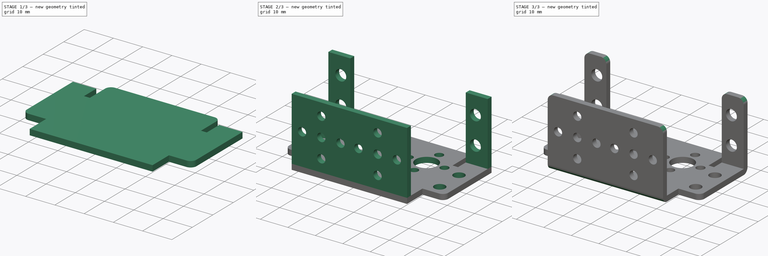
[diagram: build sequence overview — one tinted view per stage of 3, left to right]
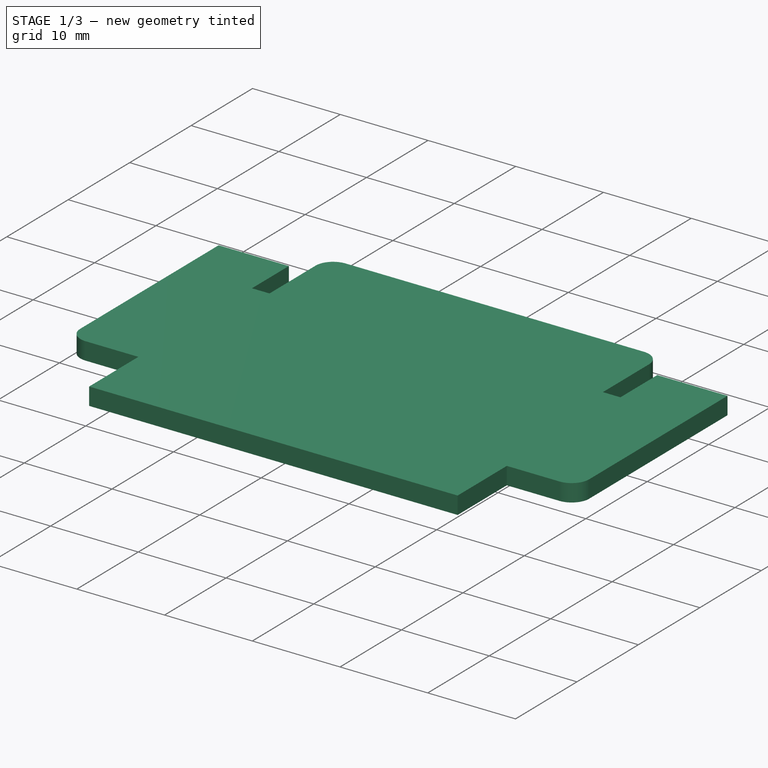
[diagram: stage 1 of 3 — iso view after this stage's code; geometry added in this stage tinted green]
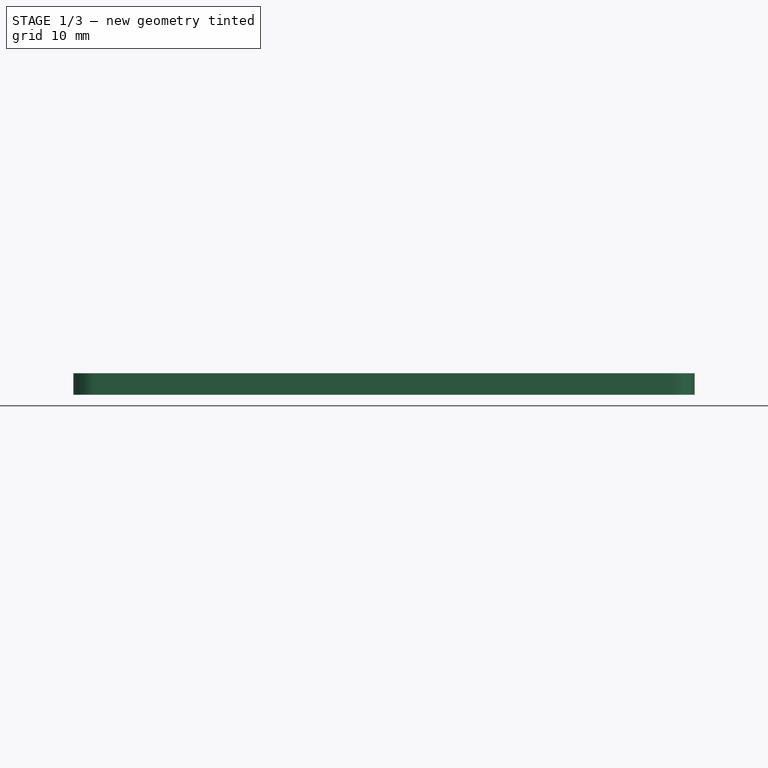
[diagram: stage 1 of 3 — front view after this stage's code; geometry added in this stage tinted green]
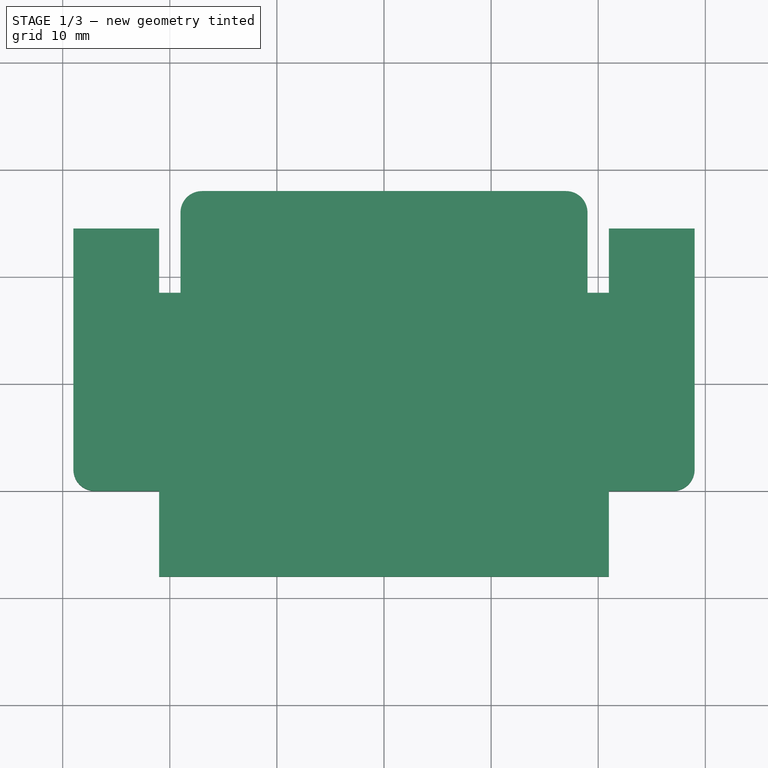
[diagram: stage 1 of 3 — top view after this stage's code; geometry added in this stage tinted green]
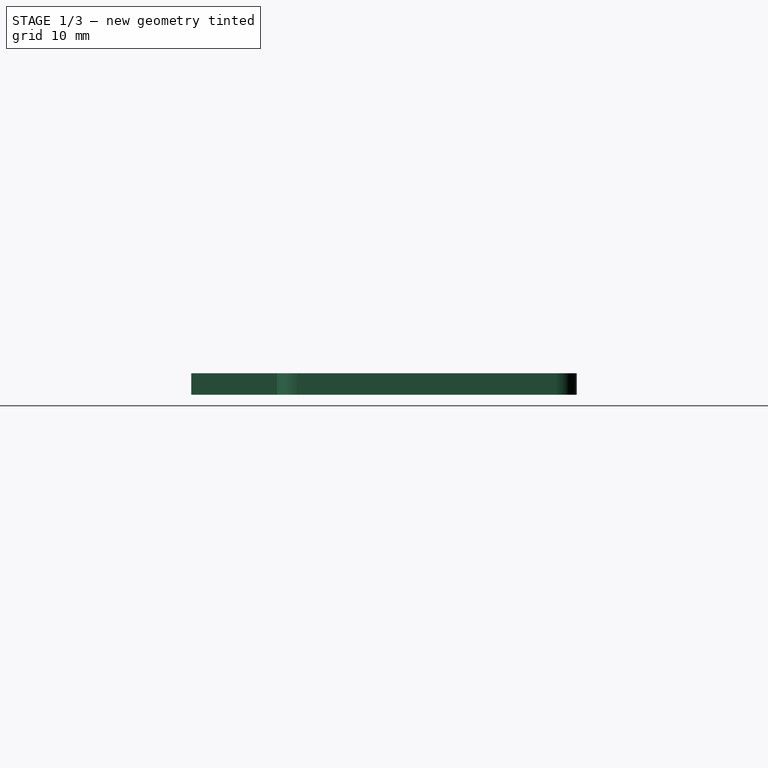
[diagram: stage 1 of 3 — right view after this stage's code; geometry added in this stage tinted green]
FCSTD DOCUMENT  (FreeCAD 0.19R24276 (Git))
Label: parte_servos
License: All rights reserved
LicenseURL: http://en.wikipedia.org/wiki/All_rights_reserved
objects: Sketcher::SketchObject×4, PartDesign::Pad×2, PartDesign::Pocket×2, PartDesign::Fillet×2, PartDesign::Mirrored×1, PartDesign::Body×1
note: 18 computed .brp shape members not serialized (recipe doc carries the construction recipe); baked Part::Feature solids carry a one-line shape summary decoded from their .brp

FEATURE [Sketcher::SketchObject] Sketch
  FullyConstrained = true
  MapMode = 5
  Support = -> [XY_Plane]
  sketch-geometry (14):
    g0: LineSegment StartX=0 StartY=-18 StartZ=0 EndX=21 EndY=-18 EndZ=0
    g1: LineSegment StartX=21 StartY=-18 StartZ=0 EndX=21 EndY=-10 EndZ=0
    g2: LineSegment StartX=21 StartY=-10 StartZ=0 EndX=27 EndY=-10 EndZ=0
    g3: ArcOfCircle CenterX=27 CenterY=-8 CenterZ=0 NormalX=0 NormalY=0 NormalZ=1 AngleXU=0 Radius=2 StartAngle=4.71239 EndAngle=6.28319
    g4: LineSegment StartX=29 StartY=-8 StartZ=0 EndX=29 EndY=14.5 EndZ=0
    g5: LineSegment StartX=29 StartY=14.5 StartZ=0 EndX=21 EndY=14.5 EndZ=0
    g6: LineSegment StartX=21 StartY=14.5 StartZ=0 EndX=21 EndY=8.5 EndZ=0
    g7: LineSegment StartX=21 StartY=8.5 StartZ=0 EndX=19 EndY=8.5 EndZ=0
    g8: LineSegment StartX=19 StartY=8.5 StartZ=0 EndX=19 EndY=16 EndZ=0
    g9: ArcOfCircle CenterX=17 CenterY=16 CenterZ=0 NormalX=0 NormalY=0 NormalZ=1 AngleXU=0 Radius=2 StartAngle=0 EndAngle=1.5708
    g10: LineSegment StartX=17 StartY=18 StartZ=0 EndX=0 EndY=18 EndZ=0
    g11: LineSegment StartX=0 StartY=18 StartZ=0 EndX=0 EndY=-18 EndZ=0
    g12: LineSegment StartX=6 StartY=18 StartZ=0 EndX=6 EndY=0 EndZ=0
    g13: LineSegment StartX=6 StartY=-18 StartZ=0 EndX=6 EndY=0 EndZ=0
  constraints (41):
    c: PointOnObject(g0,g-2)
    c: Coincident(g0,g1)
    c: Vertical(g1)
    c: Coincident(g1,g2)
    c: Horizontal(g2)
    c: Tangent(g2,g3) = -1.5708
    c: Tangent(g3,g4) = -1.5708
    c: Coincident(g4,g5)
    c: Horizontal(g5)
    c: Coincident(g5,g6)
    c: Coincident(g6,g7)
    c: Horizontal(g7)
    c: Coincident(g7,g8)
    c: Vertical(g8)
    c: Tangent(g8,g9) = -1.5708
    c: Tangent(g9,g10) = -1.5708
    c: Coincident(g10,g11)
    c: Coincident(g11,g0)
    c: Vertical(g11)
    c: Horizontal(g0)
    c: Horizontal(g10)
    c: DistanceY(g1,g1) = 8
    c: DistanceX(g1,g3) = 8
    c: Vertical(g4)
    c: Vertical(g6)
    c: DistanceX(g7,g7) = 2
    c: Radius(g3) = 2
    c: Equal(g3,g9)
    c: DistanceX(g5,g5) = 8
    c: DistanceX(g0,g3) = 29
    c: DistanceY(g0,g10) = 36
    c: DistanceY(g7,g9) = 9.5
    c: DistanceY(g2,g4) = 24.5
    c: PointOnObject(g12,g10)
    c: Vertical(g12)
    c: PointOnObject(g13,g0)
    c: Coincident(g13,g12)
    c: Vertical(g13)
    c: Equal(g13,g12)
    c: PointOnObject(g12,g-1)
    c: DistanceX(g10,g12) = 6
FEATURE [PartDesign::Pad] Pad
  Direction = (1,1,1)
  Length = 2
  Length2 = 100
  Profile = -> Sketch
  Type = 0
FEATURE [PartDesign::Mirrored] Mirrored
  BaseFeature = -> Pad
  MirrorPlane = -> Sketch [V_Axis]
  Originals = -> [Pad]
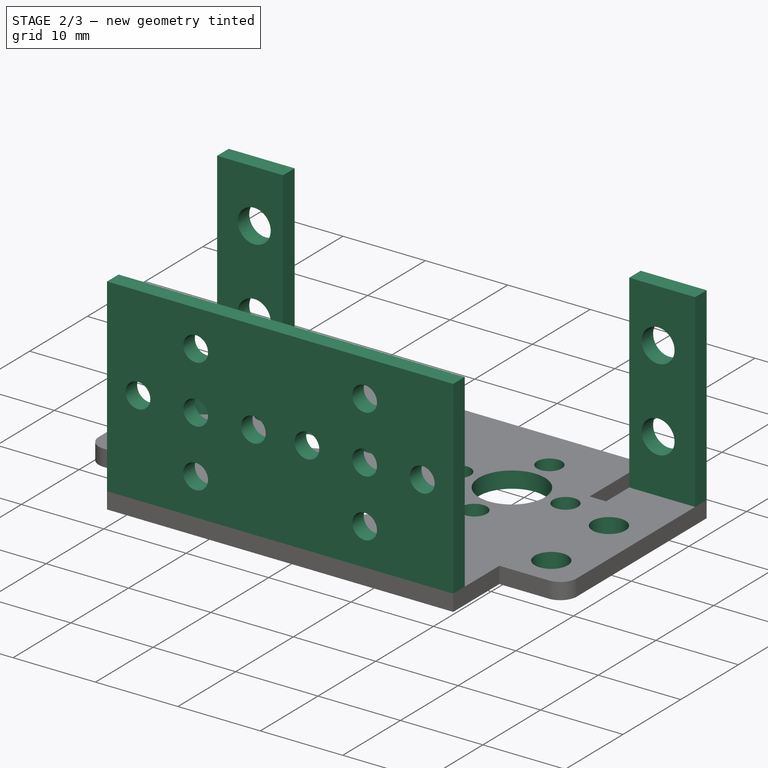
[diagram: stage 2 of 3 — iso view after this stage's code; geometry added in this stage tinted green]
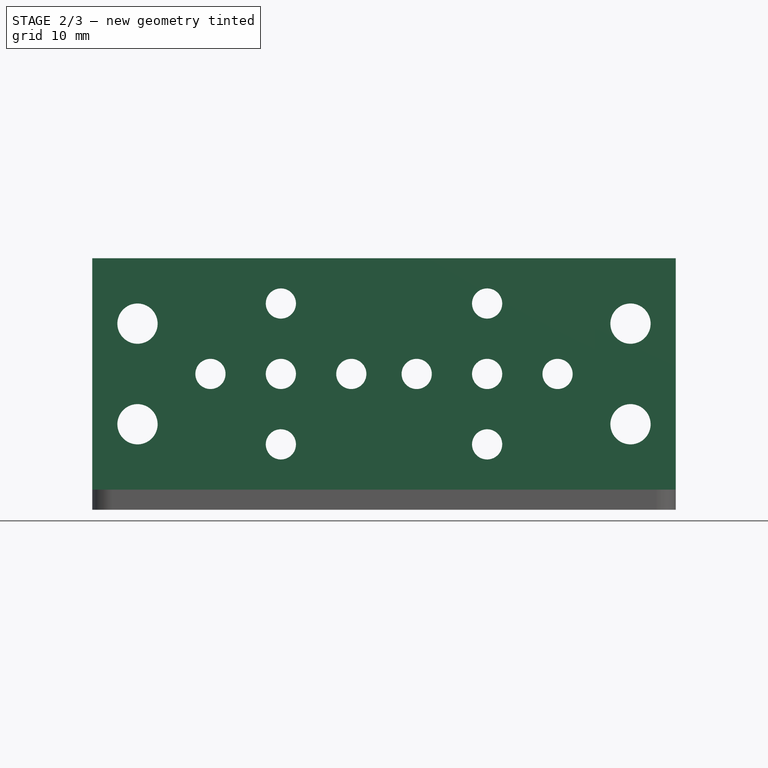
[diagram: stage 2 of 3 — front view after this stage's code; geometry added in this stage tinted green]
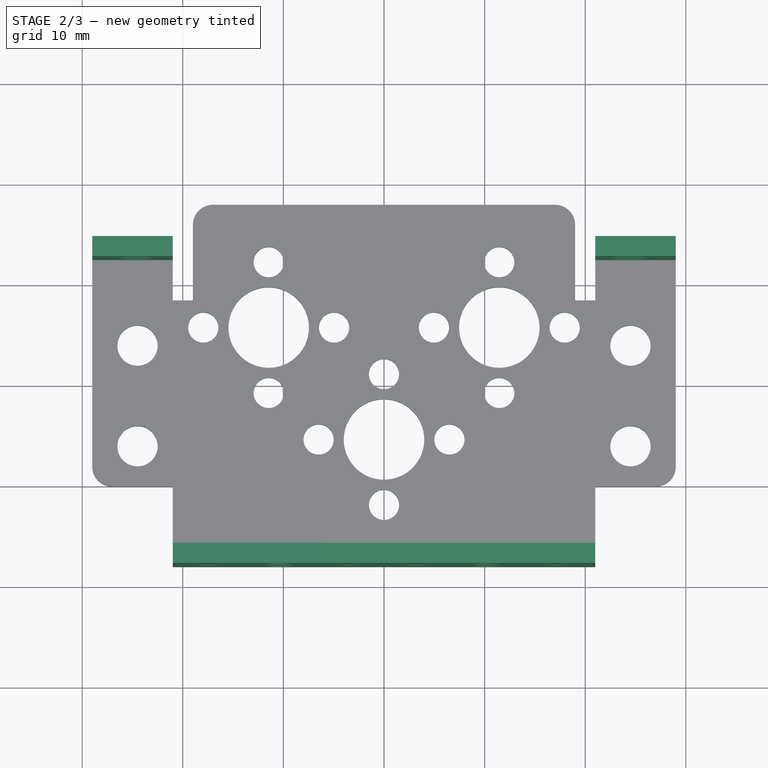
[diagram: stage 2 of 3 — top view after this stage's code; geometry added in this stage tinted green]
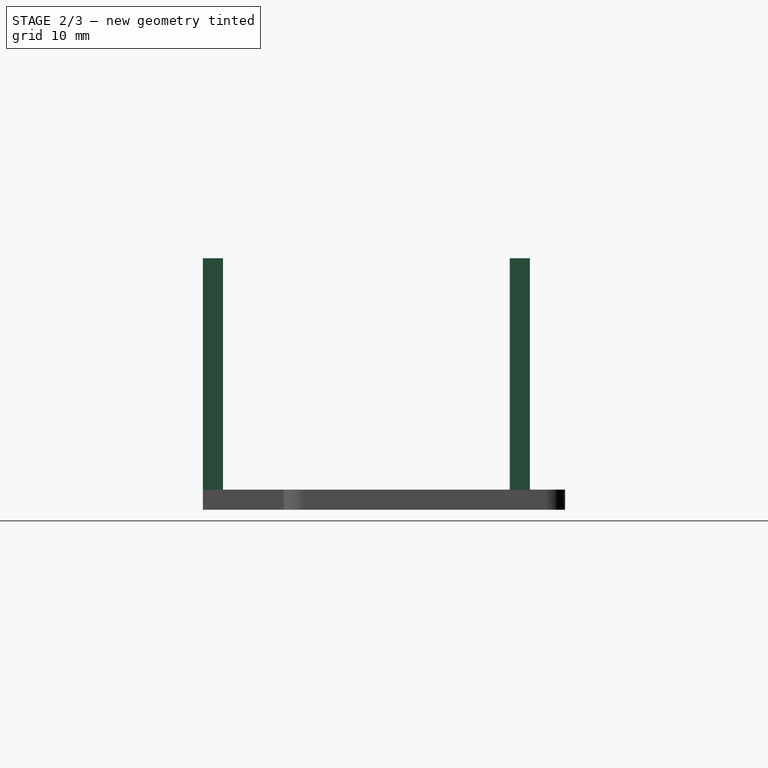
[diagram: stage 2 of 3 — right view after this stage's code; geometry added in this stage tinted green]
FEATURE [Sketcher::SketchObject] Sketch001
  ExternalGeometry = -> [Mirrored]
  FullyConstrained = true
  MapMode = 5
  Placement = pos=(0,0,2) rot=(0,0,1;0rad)
  Support = -> [Mirrored]
  sketch-geometry (12):
    g0: LineSegment StartX=29 StartY=14.5 StartZ=0 EndX=21 EndY=14.5 EndZ=0
    g1: LineSegment StartX=21 StartY=14.5 StartZ=0 EndX=21 EndY=12.5 EndZ=0
    g2: LineSegment StartX=21 StartY=12.5 StartZ=0 EndX=29 EndY=12.5 EndZ=0
    g3: LineSegment StartX=29 StartY=12.5 StartZ=0 EndX=29 EndY=14.5 EndZ=0
    g4: LineSegment StartX=-29 StartY=14.5 StartZ=0 EndX=-21 EndY=14.5 EndZ=0
    g5: LineSegment StartX=-21 StartY=14.5 StartZ=0 EndX=-21 EndY=12.5 EndZ=0
    g6: LineSegment StartX=-21 StartY=12.5 StartZ=0 EndX=-29 EndY=12.5 EndZ=0
    g7: LineSegment StartX=-29 StartY=12.5 StartZ=0 EndX=-29 EndY=14.5 EndZ=0
    g8: LineSegment StartX=-21 StartY=-18 StartZ=0 EndX=21 EndY=-18 EndZ=0
    g9: LineSegment StartX=21 StartY=-18 StartZ=0 EndX=21 EndY=-16 EndZ=0
    g10: LineSegment StartX=21 StartY=-16 StartZ=0 EndX=-21 EndY=-16 EndZ=0
    g11: LineSegment StartX=-21 StartY=-16 StartZ=0 EndX=-21 EndY=-18 EndZ=0
  constraints (33):
    c: Coincident(g0,g1)
    c: Coincident(g1,g2)
    c: Coincident(g2,g3)
    c: Coincident(g3,g0)
    c: Horizontal(g0)
    c: Horizontal(g2)
    c: Vertical(g1)
    c: Vertical(g3)
    c: Coincident(g0,g-3)
    c: Coincident(g4,g5)
    c: Coincident(g5,g6)
    c: Coincident(g6,g7)
    c: Coincident(g7,g4)
    c: Horizontal(g4)
    c: Horizontal(g6)
    c: Vertical(g5)
    c: Vertical(g7)
    c: Coincident(g4,g-4)
    c: Coincident(g8,g9)
    c: Coincident(g9,g10)
    c: Coincident(g10,g11)
    c: Coincident(g11,g8)
    c: Horizontal(g8)
    c: Horizontal(g10)
    c: Vertical(g9)
    c: Vertical(g11)
    c: Coincident(g8,g-8)
    c: Vertical(g9,g-7)
    c: Vertical(g0,g-6)
    c: Vertical(g4,g-5)
    c: DistanceY(g1,g1) = 2
    c: Equal(g5,g9)
    c: Equal(g9,g3)
FEATURE [PartDesign::Pad] Pad001
  BaseFeature = -> Mirrored
  Direction = (1,1,1)
  Length = 23
  Length2 = 100
  Profile = -> Sketch001
  Type = 0
FEATURE [Sketcher::SketchObject] Sketch002
  ExternalGeometry = -> [Pad001]
  FullyConstrained = false
  MapMode = 5
  Placement = pos=(0,0,2) rot=(0,0,1;0rad)
  Support = -> [Pad001]
  sketch-geometry (23):
    g0: Circle CenterX=-11.46 CenterY=12.3 CenterZ=0 NormalX=0 NormalY=0 NormalZ=1 AngleXU=0 Radius=1.5
    g1: Circle CenterX=-11.46 CenterY=5.8 CenterZ=0 NormalX=0 NormalY=0 NormalZ=1 AngleXU=0 Radius=4
    g2: Circle CenterX=-4.96 CenterY=5.8 CenterZ=0 NormalX=0 NormalY=0 NormalZ=1 AngleXU=0 Radius=1.5
    g3: Circle CenterX=-17.96 CenterY=5.8 CenterZ=0 NormalX=0 NormalY=0 NormalZ=1 AngleXU=0 Radius=1.5
    g4: Circle CenterX=-11.46 CenterY=-0.7 CenterZ=0 NormalX=0 NormalY=0 NormalZ=1 AngleXU=0 Radius=1.5
    g5: Circle CenterX=-11.46 CenterY=5.8 CenterZ=0 NormalX=0 NormalY=0 NormalZ=1 AngleXU=0 Radius=6.5
    g6: Circle CenterX=11.46 CenterY=12.3 CenterZ=0 NormalX=0 NormalY=0 NormalZ=1 AngleXU=0 Radius=1.5
    g7: Circle CenterX=11.46 CenterY=5.8 CenterZ=0 NormalX=0 NormalY=0 NormalZ=1 AngleXU=0 Radius=4
    g8: Circle CenterX=4.96 CenterY=5.8 CenterZ=0 NormalX=0 NormalY=0 NormalZ=1 AngleXU=0 Radius=1.5
    g9: Circle CenterX=17.96 CenterY=5.8 CenterZ=0 NormalX=0 NormalY=0 NormalZ=1 AngleXU=0 Radius=1.5
    g10: Circle CenterX=11.46 CenterY=-0.7 CenterZ=0 NormalX=0 NormalY=0 NormalZ=1 AngleXU=0 Radius=1.5
    g11: Circle CenterX=11.46 CenterY=5.8 CenterZ=0 NormalX=0 NormalY=0 NormalZ=1 AngleXU=0 Radius=6.5
    g12: Circle CenterX=0 CenterY=1.17113 CenterZ=0 NormalX=0 NormalY=0 NormalZ=1 AngleXU=0 Radius=1.5
    g13: Circle CenterX=0 CenterY=-5.32887 CenterZ=0 NormalX=0 NormalY=0 NormalZ=1 AngleXU=0 Radius=4
    g14: Circle CenterX=6.5 CenterY=-5.32887 CenterZ=0 NormalX=0 NormalY=0 NormalZ=1 AngleXU=0 Radius=1.5
    g15: Circle CenterX=-6.5 CenterY=-5.32887 CenterZ=0 NormalX=0 NormalY=0 NormalZ=1 AngleXU=0 Radius=1.5
    g16: Circle CenterX=0 CenterY=-11.8289 CenterZ=0 NormalX=0 NormalY=0 NormalZ=1 AngleXU=0 Radius=1.5
    g17: Circle CenterX=0 CenterY=-5.32887 CenterZ=0 NormalX=0 NormalY=0 NormalZ=1 AngleXU=0 Radius=6.5
    g18: Circle CenterX=-24.5 CenterY=4 CenterZ=0 NormalX=0 NormalY=0 NormalZ=1 AngleXU=0 Radius=2
    g19: Circle CenterX=-24.5 CenterY=-6 CenterZ=0 NormalX=0 NormalY=0 NormalZ=1 AngleXU=0 Radius=2
    g20: Circle CenterX=24.5 CenterY=4 CenterZ=0 NormalX=0 NormalY=0 NormalZ=1 AngleXU=0 Radius=2
    g21: Circle CenterX=24.5 CenterY=-6 CenterZ=0 NormalX=0 NormalY=0 NormalZ=1 AngleXU=0 Radius=2
    g22: GeomPoint X=24.5 Y=6 Z=0
  constraints (58):
    c: Coincident(g5,g1)
    c: Radius(g5) = 6.5
    c: PointOnObject(g0,g5)
    c: PointOnObject(g3,g5)
    c: Symmetric(g0,g4,g1)
    c: Symmetric(g2,g3,g1)
    c: Vertical(g0,g1)
    c: Horizontal(g2,g1)
    c: Diameter(g1) = 8
    c: Diameter(g0) = 3
    c: Equal(g0,g3)
    c: Equal(g0,g4)
    c: Equal(g0,g2)
    c: DistanceX(g-3,g1) = 7.54
    c: DistanceY(g1,g-3) = 2.7
    c: Coincident(g11,g7)
    c: Radius(g11) = 6.5
    c: PointOnObject(g6,g11)
    c: PointOnObject(g9,g11)
    c: Symmetric(g6,g10,g7)
    c: Symmetric(g8,g9,g7)
    c: Diameter(g7) = 8
    c: Diameter(g6) = 3
    c: Equal(g6,g9)
    c: Equal(g6,g10)
    c: Equal(g6,g8)
    c: Symmetric(g7,g1,g-2)
    c: Vertical(g6,g7)
    c: Horizontal(g9,g7)
    c: Coincident(g17,g13)
    c: Equal(g5,g17) = 6.5
    c: PointOnObject(g12,g17)
    c: PointOnObject(g15,g17)
    c: Symmetric(g12,g16,g13)
    c: Symmetric(g14,g15,g13)
    c: Vertical(g12,g13)
    c: Horizontal(g14,g13)
    c: Equal(g1,g13) = 8
    c: Equal(g0,g12) = 3
    c: Equal(g12,g15)
    c: Equal(g12,g16)
    c: Equal(g12,g14)
    c: PointOnObject(g17,g-2)
    c: Vertical(g20,g21)
    c: Vertical(g18,g19)
    c: Diameter(g20) = 4
    c: Equal(g20,g21)
    c: Equal(g20,g18)
    c: Equal(g20,g19)
    c: DistanceY(g21,g20) = 10
    c: Symmetric(g21,g19,g-2)
    c: DistanceX(g19,g21) = 49
    c: DistanceY(g-4,g21) = 4
    c: PointOnObject(g22,g20)
    c: Vertical(g22,g20)
    c: DistanceY(g22,g-5) = 8.5
    c: DistanceY(g-4,g-5) = 24.5
    c: Horizontal(g20,g18)
FEATURE [PartDesign::Pocket] Pocket
  BaseFeature = -> Pad001
  Length = 5
  Length2 = 100
  Profile = -> Sketch002
  Type = 0
FEATURE [Sketcher::SketchObject] Sketch003
  ExternalGeometry = -> [Pocket]
  FullyConstrained = true
  MapMode = 5
  Placement = pos=(0,14.5,0) rot=(0,0.707107,0.707107;3.14159rad)
  Support = -> [Pocket]
  sketch-geometry (20):
    g0: Circle CenterX=-24.5 CenterY=18.5 CenterZ=0 NormalX=0 NormalY=0 NormalZ=1 AngleXU=0 Radius=2
    g1: Circle CenterX=-24.5 CenterY=8.5 CenterZ=0 NormalX=0 NormalY=0 NormalZ=1 AngleXU=0 Radius=2
    g2: Circle CenterX=24.5 CenterY=18.5 CenterZ=0 NormalX=0 NormalY=0 NormalZ=1 AngleXU=0 Radius=2
    g3: Circle CenterX=24.5 CenterY=8.5 CenterZ=0 NormalX=0 NormalY=0 NormalZ=1 AngleXU=0 Radius=2
    g4: GeomPoint X=24.5 Y=20.5 Z=0
    g5: Circle CenterX=-10.25 CenterY=20.5 CenterZ=0 NormalX=0 NormalY=0 NormalZ=1 AngleXU=0 Radius=1.5
    g6: Circle CenterX=-10.25 CenterY=13.5 CenterZ=0 NormalX=0 NormalY=0 NormalZ=1 AngleXU=0 Radius=1.5
    g7: Circle CenterX=-10.25 CenterY=6.5 CenterZ=0 NormalX=0 NormalY=0 NormalZ=1 AngleXU=0 Radius=1.5
    g8: Circle CenterX=-3.25 CenterY=13.5 CenterZ=0 NormalX=0 NormalY=0 NormalZ=1 AngleXU=0 Radius=1.5
    g9: Circle CenterX=-17.25 CenterY=13.5 CenterZ=0 NormalX=0 NormalY=0 NormalZ=1 AngleXU=0 Radius=1.5
    g10: GeomPoint X=-18.75 Y=13.5 Z=0
    g11: Circle CenterX=10.25 CenterY=20.5 CenterZ=0 NormalX=0 NormalY=0 NormalZ=1 AngleXU=0 Radius=1.5
    g12: Circle CenterX=10.25 CenterY=13.5 CenterZ=0 NormalX=0 NormalY=0 NormalZ=1 AngleXU=0 Radius=1.5
    g13: Circle CenterX=10.25 CenterY=6.5 CenterZ=0 NormalX=0 NormalY=0 NormalZ=1 AngleXU=0 Radius=1.5
    g14: Circle CenterX=3.25 CenterY=13.5 CenterZ=0 NormalX=0 NormalY=0 NormalZ=1 AngleXU=0 Radius=1.5
    g15: Circle CenterX=17.25 CenterY=13.5 CenterZ=0 NormalX=0 NormalY=0 NormalZ=1 AngleXU=0 Radius=1.5
    g16: GeomPoint X=-10.25 Y=22 Z=0
    g17: LineSegment StartX=-24.5 StartY=8.5 StartZ=0 EndX=-24.5 EndY=13.5 EndZ=0
    g18: LineSegment StartX=-24.5 StartY=13.5 StartZ=0 EndX=-24.5 EndY=18.5 EndZ=0
    g19: LineSegment StartX=-24.5 StartY=13.5 StartZ=0 EndX=-17.25 EndY=13.5 EndZ=0
  constraints (44):
    c: Vertical(g2,g3)
    c: Vertical(g0,g1)
    c: Diameter(g0) = 4
    c: Equal(g0,g1)
    c: Equal(g0,g2)
    c: Equal(g0,g3)
    c: DistanceY(g3,g2) = 10
    c: PointOnObject(g4,g2)
    c: Vertical(g2,g4)
    c: DistanceY(g4,g-4) = 4.5
    c: DistanceX(g1,g3) = 49
    c: Symmetric(g3,g1,g-2)
    c: Horizontal(g2,g0)
    c: Diameter(g5) = 3
    c: Equal(g5, g6-g9) x4
    c: Horizontal(g9,g6)
    c: Vertical(g5,g6)
    c: Symmetric(g8,g9,g6)
    c: Symmetric(g5,g7,g6)
    c: DistanceX(g6,g8) = 7
    c: DistanceY(g6,g5) = 7
    c: PointOnObject(g10,g9)
    c: Horizontal(g9,g10)
    c: DistanceX(g-8,g10) = 2.25
    c: Diameter(g11) = 3
    c: Equal(g11, g12-g15) x4
    c: Symmetric(g14,g15,g12)
    c: Symmetric(g11,g13,g12)
    c: Symmetric(g12,g6,g-2)
    c: Vertical(g11,g12)
    c: PointOnObject(g16,g5)
    c: Vertical(g5,g16)
    c: DistanceY(g16,g-8) = 3
    c: Horizontal(g11,g5)
    c: Symmetric(g14,g8,g-2)
    c: DistanceX(g1,g6) = 14.25
    c: Coincident(g17,g1)
    c: Vertical(g17)
    c: Coincident(g17,g18)
    c: Coincident(g18,g0)
    c: Equal(g18,g17)
    c: Coincident(g19,g17)
    c: Coincident(g19,g9)
    c: Angle(g17,g19) = 1.5708
FEATURE [PartDesign::Pocket] Pocket001
  BaseFeature = -> Pocket
  Length = 5
  Length2 = 100
  Profile = -> Sketch003
  Type = 1
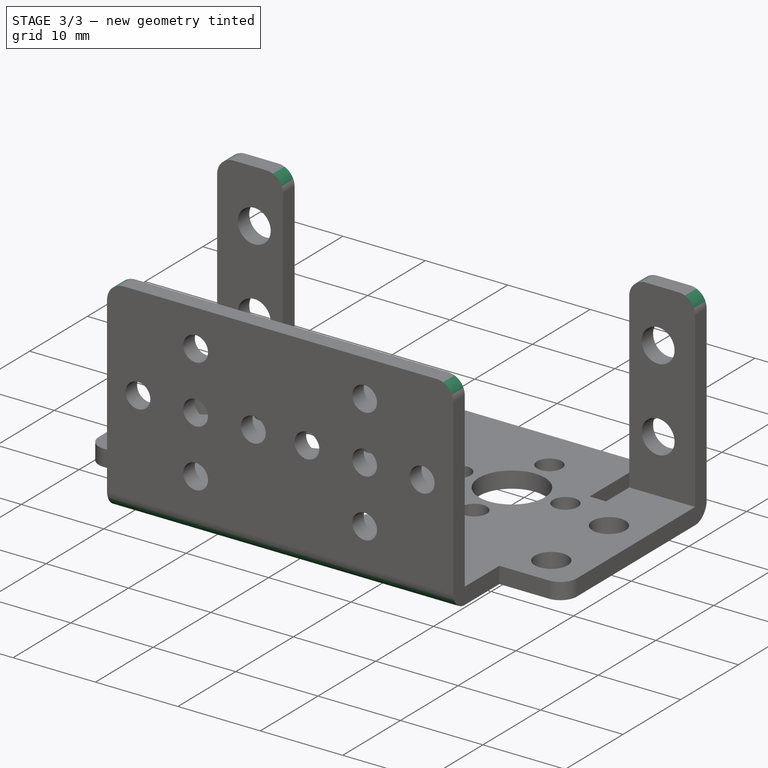
[diagram: stage 3 of 3 — iso view after this stage's code; geometry added in this stage tinted green]
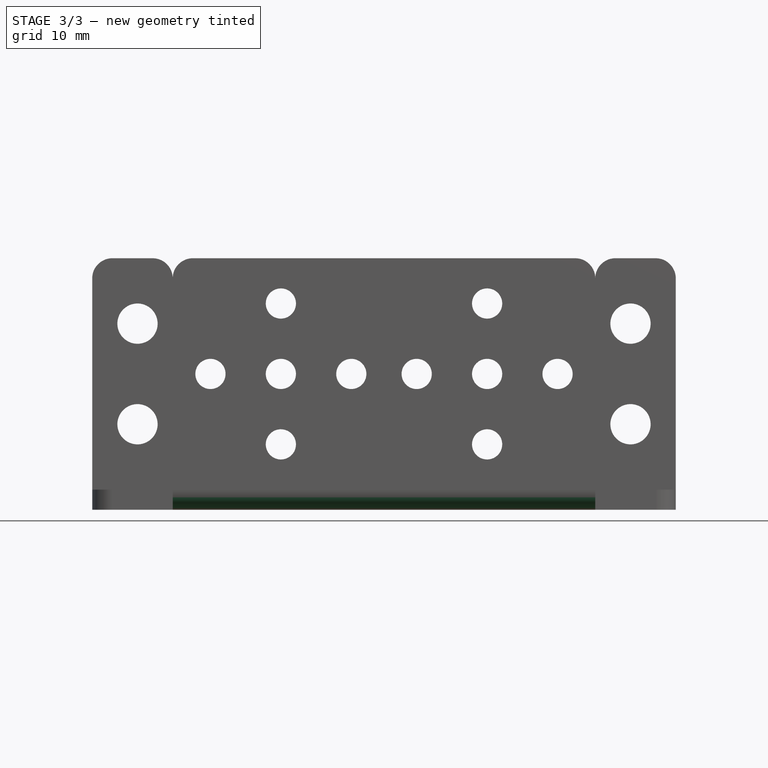
[diagram: stage 3 of 3 — front view after this stage's code; geometry added in this stage tinted green]
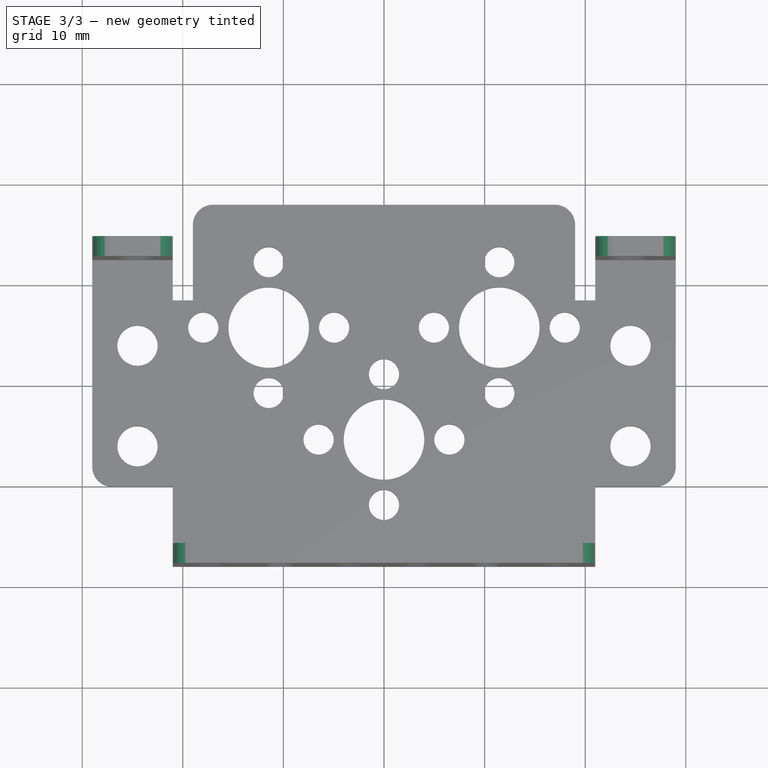
[diagram: stage 3 of 3 — top view after this stage's code; geometry added in this stage tinted green]
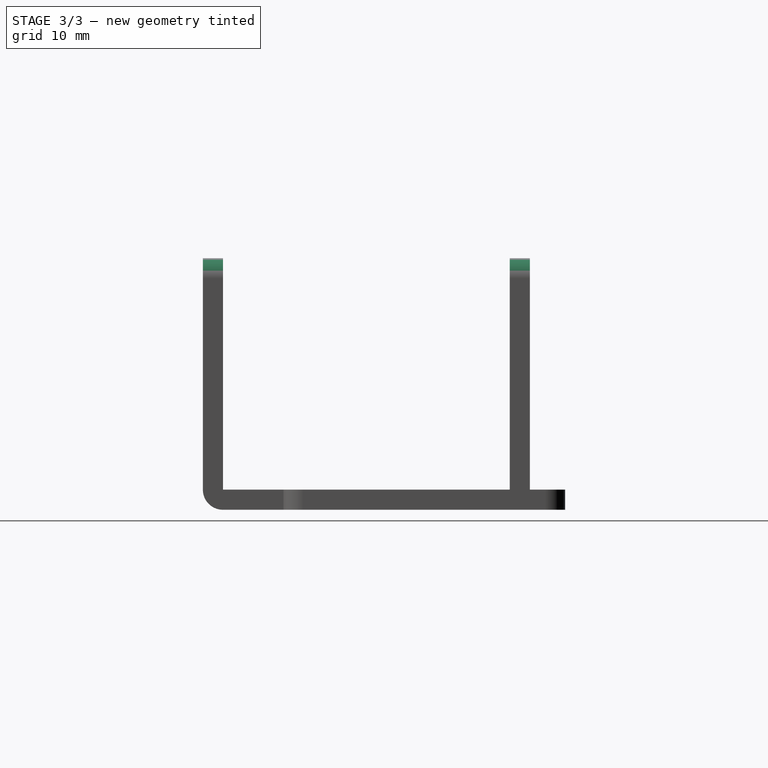
[diagram: stage 3 of 3 — right view after this stage's code; geometry added in this stage tinted green]
FEATURE [PartDesign::Fillet] Fillet
  Base = -> Pocket001 [Edge203,Edge198,Edge79,Edge133,Edge210,Edge215]
  BaseFeature = -> Pocket001
  Radius = 2
  SupportTransform = false
FEATURE [PartDesign::Fillet] Fillet001
  Base = -> Fillet [Edge97,Edge71,Edge25,Edge29]
  BaseFeature = -> Fillet
  Radius = 1.99
  SupportTransform = false
FEATURE [PartDesign::Body] Body
  Group = -> [Sketch,Pad,Mirrored,Sketch001,Pad001,Sketch002,Pocket,Sketch003,Pocket001,Fillet,Fillet001]
  Origin = -> Origin
  Tip = -> Fillet001
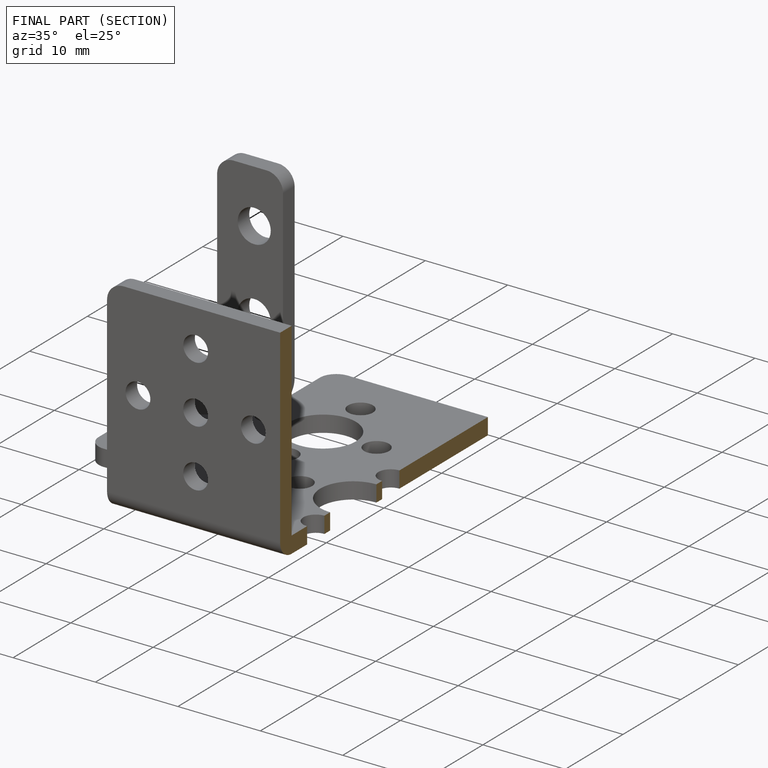
[diagram: finished part — half-section view (interior)]
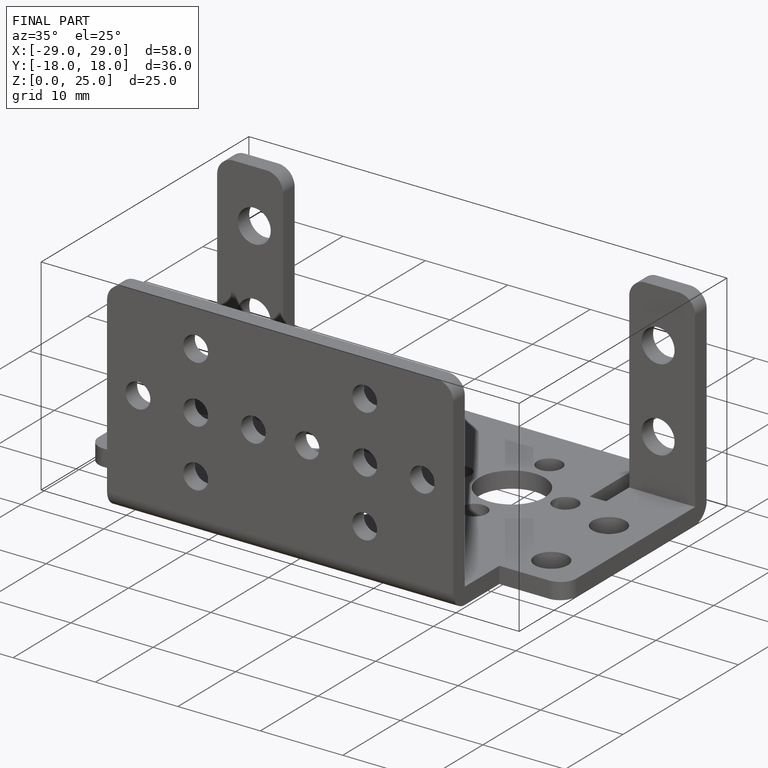
[diagram: finished part — iso view with bounding-box wireframe]
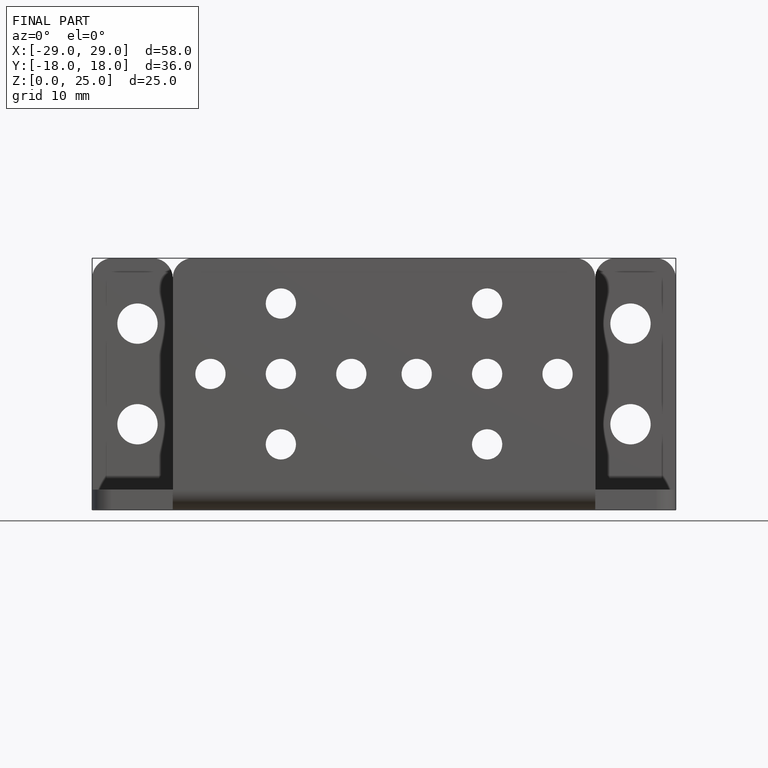
[diagram: finished part — front view with bounding-box wireframe]
